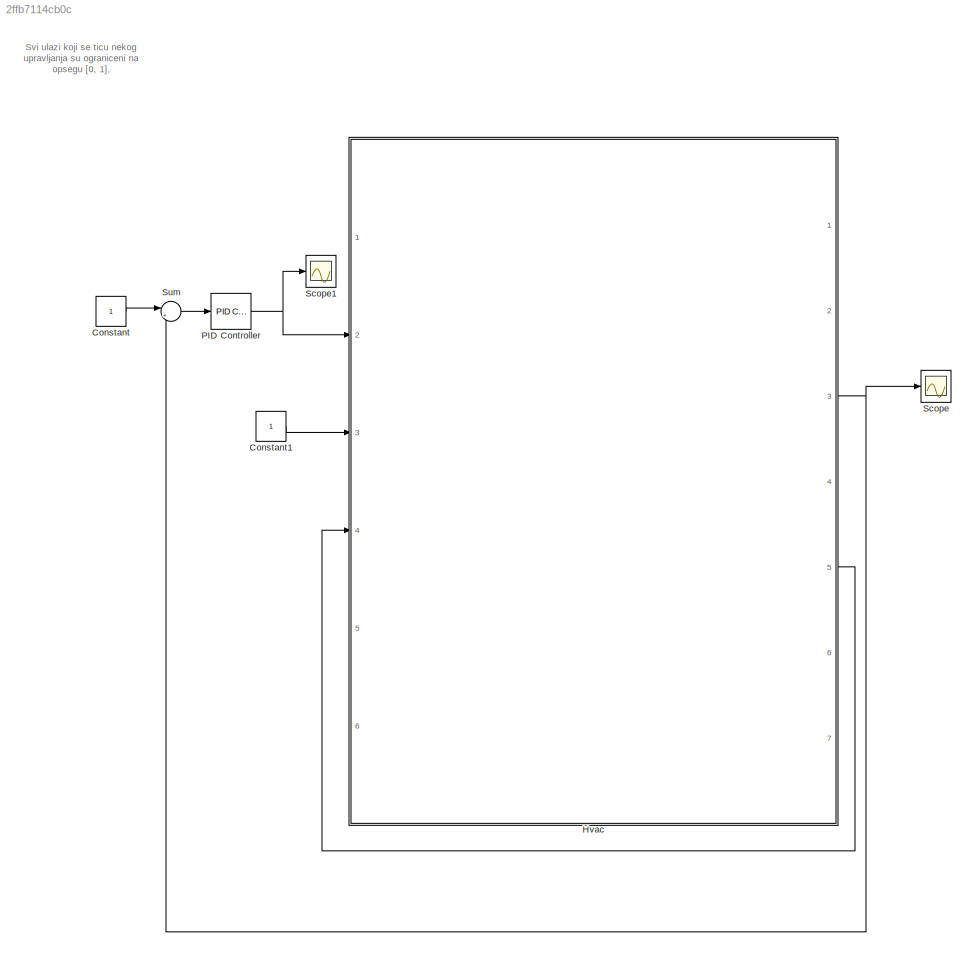
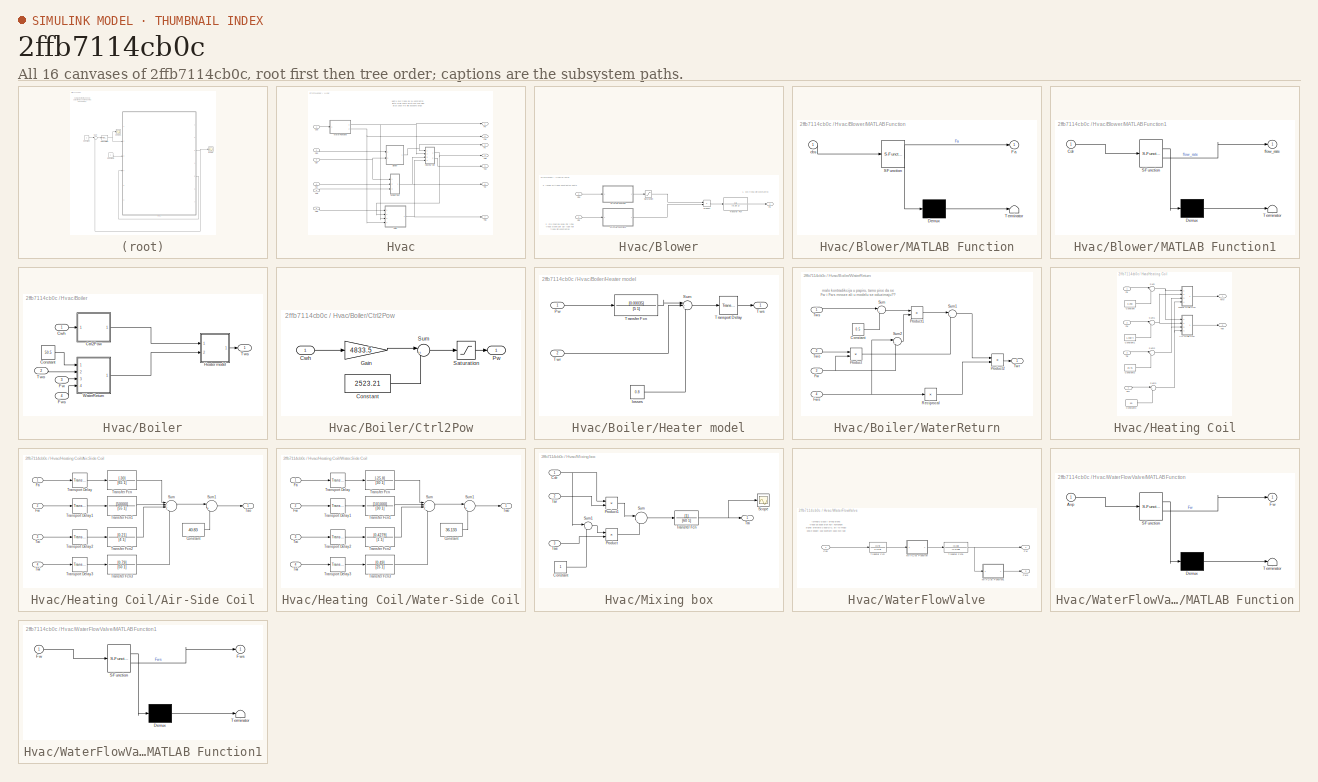
[diagram: thumbnail index - all 16 canvases of the model, root first then tree order]
MODEL slx_2ffb7114cb0c
KIND model
CONFIG AbsTol = auto
CONFIG EnableMultiTasking = off
CONFIG FixedStep = auto
CONFIG MaxStep = auto
CONFIG MinStep = auto
CONFIG RelTol = 1e-3
CONFIG SampleTimeConstraint = Unconstrained
CONFIG SolverName = VariableStepAuto
CONFIG StartTime = 0.0
CONFIG StopTime = 100000
WORKSPACE source: MATLAB code (in-file)
WORKSPACE Cbs = 10
WORKSPACE Tae = 10
BLOCK [Constant] Constant
BLOCK [Constant] Constant1
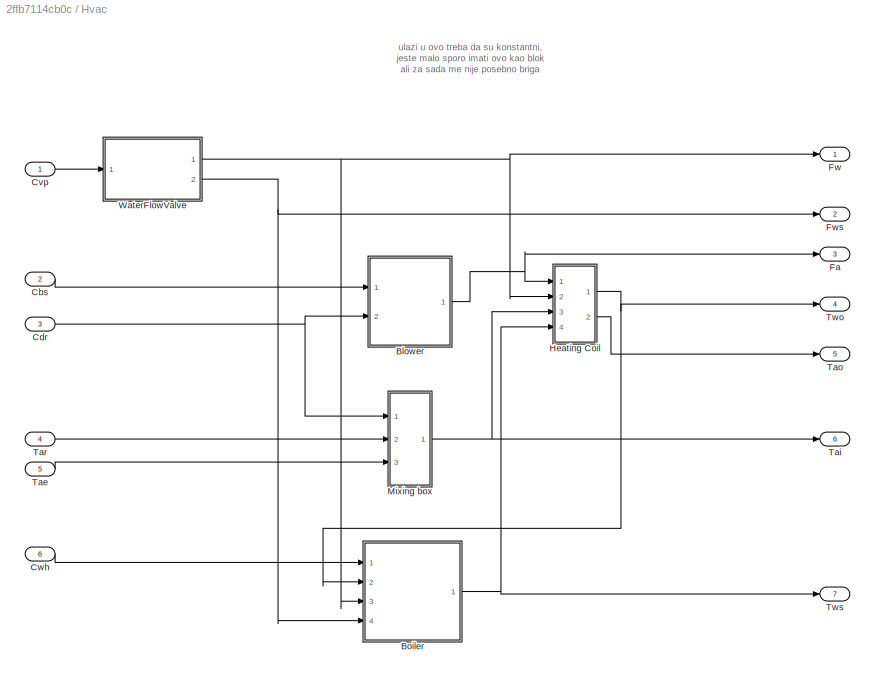
BLOCK [SubSystem] Hvac
  Ports = [6, 7]
  RequestExecContextInheritance = off
BLOCK [SubSystem] Hvac/Blower
  Ports = [2, 1]
  RequestExecContextInheritance = off
BLOCK [Inport] Hvac/Blower/Cbs
BLOCK [Inport] Hvac/Blower/Cdr
  Port = 2
BLOCK [Outport] Hvac/Blower/Fa
BLOCK [SubSystem] Hvac/Blower/MATLAB Function
  ErrorFcn = Stateflow.Translate.translate
  PermitHierarchicalResolution = ExplicitOnly
  Ports = [1, 1]
  RequestExecContextInheritance = off
  SFBlockType = MATLAB Function
  TreatAsAtomicUnit = on
BLOCK [Demux] Hvac/Blower/MATLAB Function/ Demux 
  Outputs = 1
  Ports = [1, 1]
BLOCK [S-Function] Hvac/Blower/MATLAB Function/ SFunction 
  EnableBusSupport = on
  FunctionName = sf_sfun
  PortCounts = [1 2]
  Ports = [1, 2]
  SFcnIsStateOwnerBlock = off
  SFunctionDeploymentMode = off
  Tag = Stateflow S-Function 2
BLOCK [Terminator] Hvac/Blower/MATLAB Function/ Terminator 
BLOCK [Outport] Hvac/Blower/MATLAB Function/Fa
BLOCK [Inport] Hvac/Blower/MATLAB Function/cbs
BLOCK [SubSystem] Hvac/Blower/MATLAB Function1
  ErrorFcn = Stateflow.Translate.translate
  PermitHierarchicalResolution = ExplicitOnly
  Ports = [1, 1]
  RequestExecContextInheritance = off
  SFBlockType = MATLAB Function
  TreatAsAtomicUnit = on
BLOCK [Demux] Hvac/Blower/MATLAB Function1/ Demux 
  Outputs = 1
  Ports = [1, 1]
BLOCK [S-Function] Hvac/Blower/MATLAB Function1/ SFunction 
  EnableBusSupport = on
  FunctionName = sf_sfun
  PortCounts = [1 2]
  Ports = [1, 2]
  SFcnIsStateOwnerBlock = off
  SFunctionDeploymentMode = off
  Tag = Stateflow S-Function 1
BLOCK [Terminator] Hvac/Blower/MATLAB Function1/ Terminator 
BLOCK [Inport] Hvac/Blower/MATLAB Function1/Cdr
BLOCK [Outport] Hvac/Blower/MATLAB Function1/flow_rate
BLOCK [Product] Hvac/Blower/Product
  Ports = [2, 1]
BLOCK [Saturate] Hvac/Blower/Saturation
  LowerLimit = -0.04
  UpperLimit = 0.8058
BLOCK [TransferFcn] Hvac/Blower/Transfer Fcn
  Denominator = [0.25 1]
BLOCK [SubSystem] Hvac/Boiler
  Ports = [4, 1]
  RequestExecContextInheritance = off
BLOCK [Constant] Hvac/Boiler/Constant
  Value = 50.5
BLOCK [SubSystem] Hvac/Boiler/Ctrl2Pow
  Ports = [1, 1]
  RequestExecContextInheritance = off
BLOCK [Constant] Hvac/Boiler/Ctrl2Pow/Constant
  Value = 2523.21
BLOCK [Inport] Hvac/Boiler/Ctrl2Pow/Cwh
BLOCK [Gain] Hvac/Boiler/Ctrl2Pow/Gain
  Gain = 4833.5
BLOCK [Outport] Hvac/Boiler/Ctrl2Pow/Pw
BLOCK [Saturate] Hvac/Boiler/Ctrl2Pow/Saturation
  LowerLimit = 0
  UpperLimit = 1500
BLOCK [Sum] Hvac/Boiler/Ctrl2Pow/Sum
  Inputs = |++
  Ports = [2, 1]
BLOCK [Inport] Hvac/Boiler/Cwh
BLOCK [Inport] Hvac/Boiler/Fw
  Port = 3
BLOCK [Inport] Hvac/Boiler/Fws
  Port = 4
BLOCK [SubSystem] Hvac/Boiler/Heater model
  Ports = [2, 1]
  RequestExecContextInheritance = off
BLOCK [Inport] Hvac/Boiler/Heater model/Pw
BLOCK [Sum] Hvac/Boiler/Heater model/Sum
  Inputs = |+++
  Ports = [3, 1]
BLOCK [TransferFcn] Hvac/Boiler/Heater model/Transfer Fcn
  Denominator = [5 1]
  Numerator = [0.00035]
BLOCK [TransportDelay] Hvac/Boiler/Heater model/Transport Delay
  DelayTime = 12.6
  Ports = [1, 1]
BLOCK [Inport] Hvac/Boiler/Heater model/Twr
  Port = 2
BLOCK [Outport] Hvac/Boiler/Heater model/Tws
BLOCK [Constant] Hvac/Boiler/Heater model/losses
  Value = 0.8
BLOCK [Inport] Hvac/Boiler/Two
  Port = 2
BLOCK [Outport] Hvac/Boiler/Tws
BLOCK [SubSystem] Hvac/Boiler/WaterReturn
  Ports = [4, 1]
  RequestExecContextInheritance = off
BLOCK [Constant] Hvac/Boiler/WaterReturn/Constant
  Value = 0.5
BLOCK [Inport] Hvac/Boiler/WaterReturn/Fw
  Port = 3
BLOCK [Inport] Hvac/Boiler/WaterReturn/Fws
  Port = 4
BLOCK [Product] Hvac/Boiler/WaterReturn/Product
  Ports = [2, 1]
BLOCK [Product] Hvac/Boiler/WaterReturn/Product1
  Ports = [2, 1]
BLOCK [Product] Hvac/Boiler/WaterReturn/Product2
  Ports = [2, 1]
BLOCK [Product] Hvac/Boiler/WaterReturn/Reciprocal
  Inputs = /
  Ports = [1, 1]
BLOCK [Sum] Hvac/Boiler/WaterReturn/Sum
  Inputs = |+-
  Ports = [2, 1]
BLOCK [Sum] Hvac/Boiler/WaterReturn/Sum1
  Inputs = |++
  Ports = [2, 1]
BLOCK [Sum] Hvac/Boiler/WaterReturn/Sum2
  Inputs = |+-
  Ports = [2, 1]
BLOCK [Inport] Hvac/Boiler/WaterReturn/Two
  Port = 2
BLOCK [Outport] Hvac/Boiler/WaterReturn/Twr
BLOCK [Inport] Hvac/Boiler/WaterReturn/Tws
BLOCK [Inport] Hvac/Cbs
  Port = 2
BLOCK [Inport] Hvac/Cdr
  Port = 3
BLOCK [Inport] Hvac/Cvp
BLOCK [Inport] Hvac/Cwh
  Port = 6
BLOCK [Outport] Hvac/Fa
  Port = 3
BLOCK [Outport] Hvac/Fw
BLOCK [Outport] Hvac/Fws
  Port = 2
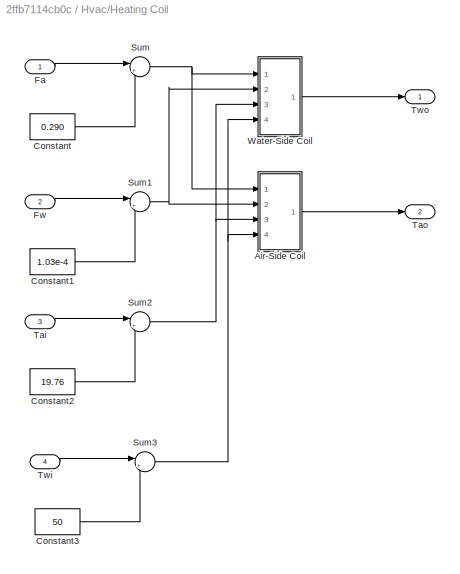
BLOCK [SubSystem] Hvac/Heating Coil
  Ports = [4, 2]
  RequestExecContextInheritance = off
BLOCK [SubSystem] Hvac/Heating Coil/Air-Side Coil
  Ports = [4, 1]
  RequestExecContextInheritance = off
BLOCK [Constant] Hvac/Heating Coil/Air-Side Coil/Constant
  Value = 40.83
BLOCK [Inport] Hvac/Heating Coil/Air-Side Coil/Fa
BLOCK [Inport] Hvac/Heating Coil/Air-Side Coil/Fw
  Port = 2
BLOCK [Sum] Hvac/Heating Coil/Air-Side Coil/Sum
  Inputs = |++++
  Ports = [4, 1]
BLOCK [Sum] Hvac/Heating Coil/Air-Side Coil/Sum1
  Inputs = |++
  Ports = [2, 1]
BLOCK [Inport] Hvac/Heating Coil/Air-Side Coil/Tai
  Port = 3
BLOCK [Outport] Hvac/Heating Coil/Air-Side Coil/Tao
BLOCK [TransferFcn] Hvac/Heating Coil/Air-Side Coil/Transfer Fcn
  Denominator = [65 1]
  Numerator = [-30]
BLOCK [TransferFcn] Hvac/Heating Coil/Air-Side Coil/Transfer Fcn1
  Denominator = [55 1]
  Numerator = [50000]
BLOCK [TransferFcn] Hvac/Heating Coil/Air-Side Coil/Transfer Fcn2
  Denominator = [4 1]
  Numerator = [0.21]
BLOCK [TransferFcn] Hvac/Heating Coil/Air-Side Coil/Transfer Fcn3
  Denominator = [50 1]
  Numerator = [0.79]
BLOCK [TransportDelay] Hvac/Heating Coil/Air-Side Coil/Transport Delay
  DelayTime = 10
  Ports = [1, 1]
BLOCK [TransportDelay] Hvac/Heating Coil/Air-Side Coil/Transport Delay1
  DelayTime = 20
  Ports = [1, 1]
BLOCK [TransportDelay] Hvac/Heating Coil/Air-Side Coil/Transport Delay2
  DelayTime = 20
  Ports = [1, 1]
BLOCK [TransportDelay] Hvac/Heating Coil/Air-Side Coil/Transport Delay3
  DelayTime = 20
  Ports = [1, 1]
BLOCK [Inport] Hvac/Heating Coil/Air-Side Coil/Twi
  Port = 4
BLOCK [Constant] Hvac/Heating Coil/Constant
  Value = 0.290
BLOCK [Constant] Hvac/Heating Coil/Constant1
  Value = 1.03e-4
BLOCK [Constant] Hvac/Heating Coil/Constant2
  Value = 19.76
BLOCK [Constant] Hvac/Heating Coil/Constant3
  Value = 50
BLOCK [Inport] Hvac/Heating Coil/Fa
BLOCK [Inport] Hvac/Heating Coil/Fw
  Port = 2
BLOCK [Sum] Hvac/Heating Coil/Sum
  Inputs = |+-
  Ports = [2, 1]
BLOCK [Sum] Hvac/Heating Coil/Sum1
  Inputs = |+-
  Ports = [2, 1]
BLOCK [Sum] Hvac/Heating Coil/Sum2
  Inputs = |+-
  Ports = [2, 1]
BLOCK [Sum] Hvac/Heating Coil/Sum3
  Inputs = |+-
  Ports = [2, 1]
BLOCK [Inport] Hvac/Heating Coil/Tai
  Port = 3
BLOCK [Outport] Hvac/Heating Coil/Tao
  Port = 2
BLOCK [Inport] Hvac/Heating Coil/Twi
  Port = 4
BLOCK [Outport] Hvac/Heating Coil/Two
BLOCK [SubSystem] Hvac/Heating Coil/Water-Side Coil
  Ports = [4, 1]
  RequestExecContextInheritance = off
BLOCK [Constant] Hvac/Heating Coil/Water-Side Coil/Constant
  Value = 36.133
BLOCK [Inport] Hvac/Heating Coil/Water-Side Coil/Fa
BLOCK [Inport] Hvac/Heating Coil/Water-Side Coil/Fw
  Port = 2
BLOCK [Sum] Hvac/Heating Coil/Water-Side Coil/Sum
  Inputs = |++++
  Ports = [4, 1]
BLOCK [Sum] Hvac/Heating Coil/Water-Side Coil/Sum1
  Inputs = |++
  Ports = [2, 1]
BLOCK [Inport] Hvac/Heating Coil/Water-Side Coil/Tai
  Port = 3
BLOCK [TransferFcn] Hvac/Heating Coil/Water-Side Coil/Transfer Fcn
  Denominator = [30 1]
  Numerator = [-25.8]
BLOCK [TransferFcn] Hvac/Heating Coil/Water-Side Coil/Transfer Fcn1
  Denominator = [30 1]
  Numerator = [101000]
BLOCK [TransferFcn] Hvac/Heating Coil/Water-Side Coil/Transfer Fcn2
  Denominator = [1 1]
  Numerator = [0.4279]
BLOCK [TransferFcn] Hvac/Heating Coil/Water-Side Coil/Transfer Fcn3
  Denominator = [25 1]
  Numerator = [0.49]
BLOCK [TransportDelay] Hvac/Heating Coil/Water-Side Coil/Transport Delay
  DelayTime = 15
  Ports = [1, 1]
BLOCK [TransportDelay] Hvac/Heating Coil/Water-Side Coil/Transport Delay1
  DelayTime = 10
  Ports = [1, 1]
BLOCK [TransportDelay] Hvac/Heating Coil/Water-Side Coil/Transport Delay2
  DelayTime = 10
  Ports = [1, 1]
BLOCK [TransportDelay] Hvac/Heating Coil/Water-Side Coil/Transport Delay3
  DelayTime = 40
  Ports = [1, 1]
BLOCK [Inport] Hvac/Heating Coil/Water-Side Coil/Twi
  Port = 4
BLOCK [Outport] Hvac/Heating Coil/Water-Side Coil/Two
BLOCK [SubSystem] Hvac/Mixing box
  Ports = [3, 1]
  RequestExecContextInheritance = off
BLOCK [Inport] Hvac/Mixing box/Cdr
BLOCK [Constant] Hvac/Mixing box/Constant
BLOCK [Product] Hvac/Mixing box/Product
  Ports = [2, 1]
BLOCK [Product] Hvac/Mixing box/Product1
  Ports = [2, 1]
BLOCK [Scope] Hvac/Mixing box/Scope
  Floating = off
  NumInputPorts = 1
  Ports = [1]
  ScopeSpecificationString = Simulink.scopes.TimeScopeBlockCfg('CurrentConfiguration', extmgr.ConfigurationSet(extmgr.Configuration('Core','General UI',true),extmgr.Configuration('Core','Source UI',true),extmgr.Configuration('Sources','WiredSimulink',true,'DataLoggingVariableName','ScopeData4'),extmgr.Configuration('Visuals','Time Domain',true,'SerializedDisplays',{struct('MinYLimReal','-23.08536','MaxYLimReal','2.56504','YLa...<+1375ch>
BLOCK [Sum] Hvac/Mixing box/Sum
  Inputs = |-+
  Ports = [2, 1]
BLOCK [Sum] Hvac/Mixing box/Sum1
  Inputs = |++
  Ports = [2, 1]
BLOCK [Inport] Hvac/Mixing box/Tae
  Port = 3
BLOCK [Outport] Hvac/Mixing box/Tai
BLOCK [Inport] Hvac/Mixing box/Tar
  Port = 2
BLOCK [TransferFcn] Hvac/Mixing box/Transfer Fcn
  Denominator = [60 1]
BLOCK [Inport] Hvac/Tae
  Port = 5
BLOCK [Outport] Hvac/Tai
  Port = 6
BLOCK [Outport] Hvac/Tao
  Port = 5
BLOCK [Inport] Hvac/Tar
  Port = 4
BLOCK [Outport] Hvac/Two
  Port = 4
BLOCK [Outport] Hvac/Tws
  Port = 7
BLOCK [SubSystem] Hvac/WaterFlowValve
  Ports = [1, 2]
  RequestExecContextInheritance = off
BLOCK [Inport] Hvac/WaterFlowValve/Cvp
BLOCK [Outport] Hvac/WaterFlowValve/Fw
BLOCK [Outport] Hvac/WaterFlowValve/Fws
  Port = 2
BLOCK [SubSystem] Hvac/WaterFlowValve/MATLAB Function
  ErrorFcn = Stateflow.Translate.translate
  PermitHierarchicalResolution = ExplicitOnly
  Ports = [1, 1]
  RequestExecContextInheritance = off
  SFBlockType = MATLAB Function
  TreatAsAtomicUnit = on
BLOCK [Demux] Hvac/WaterFlowValve/MATLAB Function/ Demux 
  Outputs = 1
  Ports = [1, 1]
BLOCK [S-Function] Hvac/WaterFlowValve/MATLAB Function/ SFunction 
  EnableBusSupport = on
  FunctionName = sf_sfun
  PortCounts = [1 2]
  Ports = [1, 2]
  SFcnIsStateOwnerBlock = off
  SFunctionDeploymentMode = off
  Tag = Stateflow S-Function 3
BLOCK [Terminator] Hvac/WaterFlowValve/MATLAB Function/ Terminator 
BLOCK [Inport] Hvac/WaterFlowValve/MATLAB Function/Avp
BLOCK [Outport] Hvac/WaterFlowValve/MATLAB Function/Fw
BLOCK [SubSystem] Hvac/WaterFlowValve/MATLAB Function1
  ErrorFcn = Stateflow.Translate.translate
  PermitHierarchicalResolution = ExplicitOnly
  Ports = [1, 1]
  RequestExecContextInheritance = off
  SFBlockType = MATLAB Function
  TreatAsAtomicUnit = on
BLOCK [Demux] Hvac/WaterFlowValve/MATLAB Function1/ Demux 
  Outputs = 1
  Ports = [1, 1]
BLOCK [S-Function] Hvac/WaterFlowValve/MATLAB Function1/ SFunction 
  EnableBusSupport = on
  FunctionName = sf_sfun
  PortCounts = [1 2]
  Ports = [1, 2]
  SFcnIsStateOwnerBlock = off
  SFunctionDeploymentMode = off
  Tag = Stateflow S-Function 4
BLOCK [Terminator] Hvac/WaterFlowValve/MATLAB Function1/ Terminator 
BLOCK [Inport] Hvac/WaterFlowValve/MATLAB Function1/Fw
BLOCK [Outport] Hvac/WaterFlowValve/MATLAB Function1/Fws
BLOCK [TransferFcn] Hvac/WaterFlowValve/Transfer Fcn
  Denominator = [1 0.9]
  Numerator = [0.9]
BLOCK [TransferFcn] Hvac/WaterFlowValve/Transfer Fcn1
  Denominator = [1 0.33]
  Numerator = [0.33]
BLOCK [Reference] PID Controller  REF=slpidlib/PID Controller
  Ports = [1, 1]
  SourceBlock = slpidlib/PID Controller
  SourceProductBaseCode = SL
  SourceType = PID 1dof
BLOCK [Scope] Scope
  Floating = off
  NumInputPorts = 1
  Ports = [1]
  ScopeSpecificationString = Simulink.scopes.TimeScopeBlockCfg('CurrentConfiguration', extmgr.ConfigurationSet(extmgr.Configuration('Core','General UI',true),extmgr.Configuration('Core','Source UI',true),extmgr.Configuration('Sources','WiredSimulink',true),extmgr.Configuration('Visuals','Time Domain',true,'SerializedDisplays',{struct('MinYLimReal','-0.1076','MaxYLimReal','0.81142','YLabelReal','','MinYLimMag','0.00000','MaxYL...<+1324ch>
BLOCK [Scope] Scope1
  Floating = off
  NumInputPorts = 1
  Ports = [1]
  ScopeSpecificationString = Simulink.scopes.TimeScopeBlockCfg('CurrentConfiguration', extmgr.ConfigurationSet(extmgr.Configuration('Core','General UI',true),extmgr.Configuration('Core','Source UI',true),extmgr.Configuration('Sources','WiredSimulink',true,'DataLoggingVariableName','ScopeData1'),extmgr.Configuration('Visuals','Time Domain',true,'SerializedDisplays',{struct('MinYLimReal','-3507.48825','MaxYLimReal','31577.39427...<+1399ch>
BLOCK [Sum] Sum
  Inputs = |+-
  Ports = [2, 1]
ANNOTATION (root): Svi ulazi koji se ticu nekog upravljanja su ograniceni na opsegu [0, 1],
ANNOTATION Hvac: ulazi u ovo treba da su konstantni, jeste malo sporo imati ovo kao blok ali za sada me nije posebno briga
ANNOTATION Hvac/Blower: 1. ovo treba biti kosntantno
ANNOTATION Hvac/Blower: 2. sto znaci da ovde Cdr i Cde treba staviti zbir Cdr i Cde koji treba biti konstantan
ANNOTATION Hvac/Blower: 3. i ovde mi treba konstantno nesto
ANNOTATION Hvac/Boiler/WaterReturn: malo kontradikcija u papiru, tamo pise da se Fw i Fws mnoze ali u modelu se oduzimaju??
ANNOTATION Hvac/WaterFlowValve: izmedju ulaza i prvog bloka treba da bude blok koji komandni signal pretvara u poziciju, ali to mogu posle dodati kad skontam kako ovo radi
LINE Constant1:1 -> Hvac:3
LINE Constant:1 -> Sum:1
LINE Hvac/Blower/Cbs:1 -> Hvac/Blower/MATLAB Function:1
LINE Hvac/Blower/Cdr:1 -> Hvac/Blower/MATLAB Function1:1
LINE Hvac/Blower/MATLAB Function1:1 -> Hvac/Blower/Product:2
LINE Hvac/Blower/MATLAB Function:1 -> Hvac/Blower/Saturation:1
LINE Hvac/Blower/Product:1 -> Hvac/Blower/Transfer Fcn:1
LINE Hvac/Blower/Saturation:1 -> Hvac/Blower/Product:1
LINE Hvac/Blower/Transfer Fcn:1 -> Hvac/Blower/Fa:1
NET Hvac/Blower:1 -> Hvac/Fa:1, Hvac/Heating Coil:1
LINE Hvac/Boiler/Constant:1 -> Hvac/Boiler/WaterReturn:1
LINE Hvac/Boiler/Ctrl2Pow/Constant:1 -> Hvac/Boiler/Ctrl2Pow/Sum:2
LINE Hvac/Boiler/Ctrl2Pow/Cwh:1 -> Hvac/Boiler/Ctrl2Pow/Gain:1
LINE Hvac/Boiler/Ctrl2Pow/Gain:1 -> Hvac/Boiler/Ctrl2Pow/Sum:1
LINE Hvac/Boiler/Ctrl2Pow/Saturation:1 -> Hvac/Boiler/Ctrl2Pow/Pw:1
LINE Hvac/Boiler/Ctrl2Pow/Sum:1 -> Hvac/Boiler/Ctrl2Pow/Saturation:1
LINE Hvac/Boiler/Ctrl2Pow:1 -> Hvac/Boiler/Heater model:1
LINE Hvac/Boiler/Cwh:1 -> Hvac/Boiler/Ctrl2Pow:1
LINE Hvac/Boiler/Fw:1 -> Hvac/Boiler/WaterReturn:3
LINE Hvac/Boiler/Fws:1 -> Hvac/Boiler/WaterReturn:4
LINE Hvac/Boiler/Heater model/Pw:1 -> Hvac/Boiler/Heater model/Transfer Fcn:1
LINE Hvac/Boiler/Heater model/Sum:1 -> Hvac/Boiler/Heater model/Transport Delay:1
LINE Hvac/Boiler/Heater model/Transfer Fcn:1 -> Hvac/Boiler/Heater model/Sum:1
LINE Hvac/Boiler/Heater model/Transport Delay:1 -> Hvac/Boiler/Heater model/Tws:1
LINE Hvac/Boiler/Heater model/Twr:1 -> Hvac/Boiler/Heater model/Sum:2
LINE Hvac/Boiler/Heater model/losses:1 -> Hvac/Boiler/Heater model/Sum:3
LINE Hvac/Boiler/Heater model:1 -> Hvac/Boiler/Tws:1
LINE Hvac/Boiler/Two:1 -> Hvac/Boiler/WaterReturn:2
LINE Hvac/Boiler/WaterReturn/Constant:1 -> Hvac/Boiler/WaterReturn/Sum:2
NET Hvac/Boiler/WaterReturn/Fw:1 -> Hvac/Boiler/WaterReturn/Product:2, Hvac/Boiler/WaterReturn/Sum2:2
NET Hvac/Boiler/WaterReturn/Fws:1 -> Hvac/Boiler/WaterReturn/Reciprocal:1, Hvac/Boiler/WaterReturn/Sum2:1
LINE Hvac/Boiler/WaterReturn/Product1:1 -> Hvac/Boiler/WaterReturn/Sum1:1
LINE Hvac/Boiler/WaterReturn/Product2:1 -> Hvac/Boiler/WaterReturn/Twr:1
LINE Hvac/Boiler/WaterReturn/Product:1 -> Hvac/Boiler/WaterReturn/Sum1:2
LINE Hvac/Boiler/WaterReturn/Reciprocal:1 -> Hvac/Boiler/WaterReturn/Product2:2
LINE Hvac/Boiler/WaterReturn/Sum1:1 -> Hvac/Boiler/WaterReturn/Product2:1
LINE Hvac/Boiler/WaterReturn/Sum2:1 -> Hvac/Boiler/WaterReturn/Product1:2
LINE Hvac/Boiler/WaterReturn/Sum:1 -> Hvac/Boiler/WaterReturn/Product1:1
LINE Hvac/Boiler/WaterReturn/Two:1 -> Hvac/Boiler/WaterReturn/Product:1
LINE Hvac/Boiler/WaterReturn/Tws:1 -> Hvac/Boiler/WaterReturn/Sum:1
LINE Hvac/Boiler/WaterReturn:1 -> Hvac/Boiler/Heater model:2
NET Hvac/Boiler:1 -> Hvac/Heating Coil:4, Hvac/Tws:1
LINE Hvac/Cbs:1 -> Hvac/Blower:1
NET Hvac/Cdr:1 -> Hvac/Blower:2, Hvac/Mixing box:1
LINE Hvac/Cvp:1 -> Hvac/WaterFlowValve:1
LINE Hvac/Cwh:1 -> Hvac/Boiler:1
LINE Hvac/Heating Coil/Air-Side Coil/Constant:1 -> Hvac/Heating Coil/Air-Side Coil/Sum1:2
LINE Hvac/Heating Coil/Air-Side Coil/Fa:1 -> Hvac/Heating Coil/Air-Side Coil/Transport Delay:1
LINE Hvac/Heating Coil/Air-Side Coil/Fw:1 -> Hvac/Heating Coil/Air-Side Coil/Transport Delay1:1
LINE Hvac/Heating Coil/Air-Side Coil/Sum1:1 -> Hvac/Heating Coil/Air-Side Coil/Tao:1
LINE Hvac/Heating Coil/Air-Side Coil/Sum:1 -> Hvac/Heating Coil/Air-Side Coil/Sum1:1
LINE Hvac/Heating Coil/Air-Side Coil/Tai:1 -> Hvac/Heating Coil/Air-Side Coil/Transport Delay2:1
LINE Hvac/Heating Coil/Air-Side Coil/Transfer Fcn1:1 -> Hvac/Heating Coil/Air-Side Coil/Sum:2
LINE Hvac/Heating Coil/Air-Side Coil/Transfer Fcn2:1 -> Hvac/Heating Coil/Air-Side Coil/Sum:3
LINE Hvac/Heating Coil/Air-Side Coil/Transfer Fcn3:1 -> Hvac/Heating Coil/Air-Side Coil/Sum:4
LINE Hvac/Heating Coil/Air-Side Coil/Transfer Fcn:1 -> Hvac/Heating Coil/Air-Side Coil/Sum:1
LINE Hvac/Heating Coil/Air-Side Coil/Transport Delay1:1 -> Hvac/Heating Coil/Air-Side Coil/Transfer Fcn1:1
LINE Hvac/Heating Coil/Air-Side Coil/Transport Delay2:1 -> Hvac/Heating Coil/Air-Side Coil/Transfer Fcn2:1
LINE Hvac/Heating Coil/Air-Side Coil/Transport Delay3:1 -> Hvac/Heating Coil/Air-Side Coil/Transfer Fcn3:1
LINE Hvac/Heating Coil/Air-Side Coil/Transport Delay:1 -> Hvac/Heating Coil/Air-Side Coil/Transfer Fcn:1
LINE Hvac/Heating Coil/Air-Side Coil/Twi:1 -> Hvac/Heating Coil/Air-Side Coil/Transport Delay3:1
LINE Hvac/Heating Coil/Air-Side Coil:1 -> Hvac/Heating Coil/Tao:1
LINE Hvac/Heating Coil/Constant1:1 -> Hvac/Heating Coil/Sum1:2
LINE Hvac/Heating Coil/Constant2:1 -> Hvac/Heating Coil/Sum2:2
LINE Hvac/Heating Coil/Constant3:1 -> Hvac/Heating Coil/Sum3:2
LINE Hvac/Heating Coil/Constant:1 -> Hvac/Heating Coil/Sum:2
LINE Hvac/Heating Coil/Fa:1 -> Hvac/Heating Coil/Sum:1
LINE Hvac/Heating Coil/Fw:1 -> Hvac/Heating Coil/Sum1:1
NET Hvac/Heating Coil/Sum1:1 -> Hvac/Heating Coil/Air-Side Coil:2, Hvac/Heating Coil/Water-Side Coil:2
NET Hvac/Heating Coil/Sum2:1 -> Hvac/Heating Coil/Air-Side Coil:3, Hvac/Heating Coil/Water-Side Coil:3
NET Hvac/Heating Coil/Sum3:1 -> Hvac/Heating Coil/Air-Side Coil:4, Hvac/Heating Coil/Water-Side Coil:4
NET Hvac/Heating Coil/Sum:1 -> Hvac/Heating Coil/Air-Side Coil:1, Hvac/Heating Coil/Water-Side Coil:1
LINE Hvac/Heating Coil/Tai:1 -> Hvac/Heating Coil/Sum2:1
LINE Hvac/Heating Coil/Twi:1 -> Hvac/Heating Coil/Sum3:1
LINE Hvac/Heating Coil/Water-Side Coil/Constant:1 -> Hvac/Heating Coil/Water-Side Coil/Sum1:2
LINE Hvac/Heating Coil/Water-Side Coil/Fa:1 -> Hvac/Heating Coil/Water-Side Coil/Transport Delay:1
LINE Hvac/Heating Coil/Water-Side Coil/Fw:1 -> Hvac/Heating Coil/Water-Side Coil/Transport Delay1:1
LINE Hvac/Heating Coil/Water-Side Coil/Sum1:1 -> Hvac/Heating Coil/Water-Side Coil/Two:1
LINE Hvac/Heating Coil/Water-Side Coil/Sum:1 -> Hvac/Heating Coil/Water-Side Coil/Sum1:1
LINE Hvac/Heating Coil/Water-Side Coil/Tai:1 -> Hvac/Heating Coil/Water-Side Coil/Transport Delay2:1
LINE Hvac/Heating Coil/Water-Side Coil/Transfer Fcn1:1 -> Hvac/Heating Coil/Water-Side Coil/Sum:2
LINE Hvac/Heating Coil/Water-Side Coil/Transfer Fcn2:1 -> Hvac/Heating Coil/Water-Side Coil/Sum:3
LINE Hvac/Heating Coil/Water-Side Coil/Transfer Fcn3:1 -> Hvac/Heating Coil/Water-Side Coil/Sum:4
LINE Hvac/Heating Coil/Water-Side Coil/Transfer Fcn:1 -> Hvac/Heating Coil/Water-Side Coil/Sum:1
LINE Hvac/Heating Coil/Water-Side Coil/Transport Delay1:1 -> Hvac/Heating Coil/Water-Side Coil/Transfer Fcn1:1
LINE Hvac/Heating Coil/Water-Side Coil/Transport Delay2:1 -> Hvac/Heating Coil/Water-Side Coil/Transfer Fcn2:1
LINE Hvac/Heating Coil/Water-Side Coil/Transport Delay3:1 -> Hvac/Heating Coil/Water-Side Coil/Transfer Fcn3:1
LINE Hvac/Heating Coil/Water-Side Coil/Transport Delay:1 -> Hvac/Heating Coil/Water-Side Coil/Transfer Fcn:1
LINE Hvac/Heating Coil/Water-Side Coil/Twi:1 -> Hvac/Heating Coil/Water-Side Coil/Transport Delay3:1
LINE Hvac/Heating Coil/Water-Side Coil:1 -> Hvac/Heating Coil/Two:1
NET Hvac/Heating Coil:1 -> Hvac/Boiler:2, Hvac/Two:1
LINE Hvac/Heating Coil:2 -> Hvac/Tao:1
NET Hvac/Mixing box/Cdr:1 -> Hvac/Mixing box/Product1:1, Hvac/Mixing box/Sum1:1
LINE Hvac/Mixing box/Constant:1 -> Hvac/Mixing box/Sum1:2
LINE Hvac/Mixing box/Product1:1 -> Hvac/Mixing box/Sum:1
LINE Hvac/Mixing box/Product:1 -> Hvac/Mixing box/Sum:2
LINE Hvac/Mixing box/Sum1:1 -> Hvac/Mixing box/Product:1
LINE Hvac/Mixing box/Sum:1 -> Hvac/Mixing box/Transfer Fcn:1
LINE Hvac/Mixing box/Tae:1 -> Hvac/Mixing box/Product:2
LINE Hvac/Mixing box/Tar:1 -> Hvac/Mixing box/Product1:2
NET Hvac/Mixing box/Transfer Fcn:1 -> Hvac/Mixing box/Scope:1, Hvac/Mixing box/Tai:1
NET Hvac/Mixing box:1 -> Hvac/Heating Coil:3, Hvac/Tai:1
LINE Hvac/Tae:1 -> Hvac/Mixing box:3
LINE Hvac/Tar:1 -> Hvac/Mixing box:2
LINE Hvac/WaterFlowValve/Cvp:1 -> Hvac/WaterFlowValve/Transfer Fcn:1
LINE Hvac/WaterFlowValve/MATLAB Function1:1 -> Hvac/WaterFlowValve/Fws:1
LINE Hvac/WaterFlowValve/MATLAB Function:1 -> Hvac/WaterFlowValve/Transfer Fcn1:1
NET Hvac/WaterFlowValve/Transfer Fcn1:1 -> Hvac/WaterFlowValve/Fw:1, Hvac/WaterFlowValve/MATLAB Function1:1
LINE Hvac/WaterFlowValve/Transfer Fcn:1 -> Hvac/WaterFlowValve/MATLAB Function:1
NET Hvac/WaterFlowValve:1 -> Hvac/Boiler:3, Hvac/Fw:1, Hvac/Heating Coil:2
NET Hvac/WaterFlowValve:2 -> Hvac/Boiler:4, Hvac/Fws:1
NET Hvac:3 -> Scope:1, Sum:2
LINE Hvac:5 -> Hvac:4
NET PID Controller:1 -> Hvac:2, Scope1:1
LINE Sum:1 -> PID Controller:1
note: NET lines group one-source signal fan-out (src -> all destinations, sorted); 1:1 wires keep LINE
CHART Hvac/Blower/MATLAB Function states=1 transitions=1
  STATE_LABEL 'eML_blk_kernel()'
  STATE_LABEL 'SCRIPT:\nfunction Fa = cbs2Fa(cbs)\n    % Blower speed control to airflow\n    Fa = 1.23e-8 * cbs^4 - 3.93e-6 * cbs^3 ...\n        + 10e-4 * cbs^2 - 2.32e-3 * cbs - 1.7e-2;\n'
CHART Hvac/WaterFlowValve/MATLAB Function states=1 transitions=1
  STATE_LABEL 'eML_blk_kernel()'
  STATE_LABEL 'SCRIPT:\nfunction Fw = Avp2Fw(Avp)\n    Fw = -4.9e-12 * Avp^4 + 1.3e-9 * Avp^3 - 6.9e-8 * Avp^2 ...\n        + 4.5e-6 * Avp - 7.8e-8;'
CHART Hvac/WaterFlowValve/MATLAB Function1 states=1 transitions=1
  STATE_LABEL 'eML_blk_kernel()'
  STATE_LABEL 'SCRIPT:\nfunction Fws = Fw2Fws(Fw)\n    Fws = -240966 * Fw^3 + 888 * Fw^2 - 0.53915 * Fw + 0.00063;\n'
CHART Hvac/Blower/MATLAB Function1 states=1 transitions=1
  STATE_LABEL 'eML_blk_kernel()'
  STATE_LABEL 'SCRIPT:\nfunction flow_rate = adjFa(Cdr)\n    flow_rate = -0.0233*Cdr^3 - 0.0287 * Cdr^2 + 0.0119*Cdr + 0.933;'
CHART  states=0 transitions=0
CHART  states=0 transitions=0
CHART  states=0 transitions=0
CHART  states=0 transitions=0
